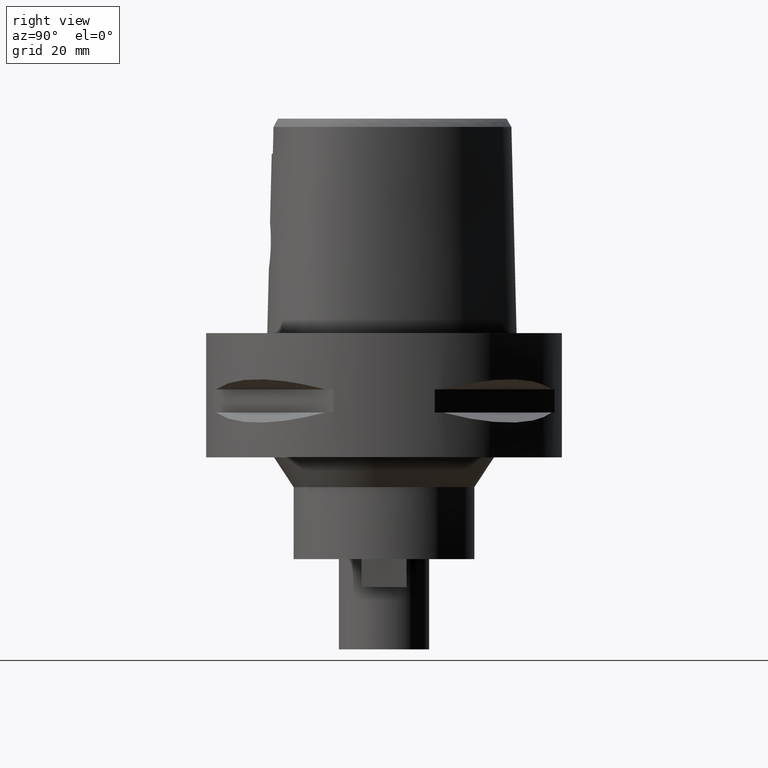
[diagram: clean part render]
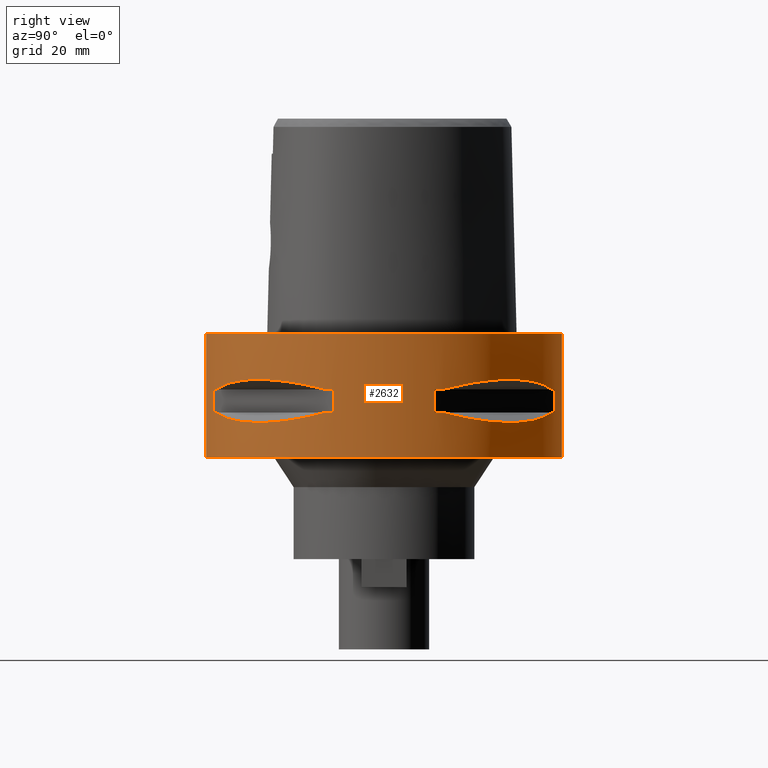
[diagram: same view with one face highlighted and labeled with its STEP entity id]
A machine part, right view. The second image highlights one B-rep face of the part: STEP entity #2632.
In plain terms, the highlighted cylindrical surface (partial cylindrical patch) has radius 31.5 mm, axis along (0, 0, -1).
Its self-contained STEP definition (entity closure, byte-faithful):
#311=CARTESIAN_POINT('',(0.E0,1.258936909523E-14,0.E0));
#312=DIRECTION('',(0.E0,0.E0,-1.E0));
#313=DIRECTION('',(0.E0,1.E0,0.E0));
#314=AXIS2_PLACEMENT_3D('',#311,#312,#313);
#409=DIRECTION('',(0.E0,0.E0,-1.E0));
#410=VECTOR('',#409,2.2E1);
#411=CARTESIAN_POINT('',(0.E0,-3.15E1,0.E0));
#412=LINE('',#411,#410);
#466=DIRECTION('',(0.E0,0.E0,-1.E0));
#467=VECTOR('',#466,2.2E1);
#468=CARTESIAN_POINT('',(0.E0,3.15E1,0.E0));
#469=LINE('',#468,#467);
#473=DIRECTION('',(0.E0,0.E0,-1.E0));
#474=VECTOR('',#473,4.1E0);
#475=CARTESIAN_POINT('',(8.981198972018E0,-3.019251670572E1,-9.95E0));
#476=LINE('',#475,#474);
#480=CARTESIAN_POINT('',(1.044775724750E1,-2.971690375018E1,-1.405E1));
#481=CARTESIAN_POINT('',(1.282388988809E1,-2.888151197365E1,-1.467900482380E1));
#482=CARTESIAN_POINT('',(1.711282138769E1,-2.674739463903E1,-1.555870402292E1));
#483=CARTESIAN_POINT('',(2.244574140438E1,-2.244574140438E1,-1.597971692370E1));
#484=CARTESIAN_POINT('',(2.674739463903E1,-1.711282138769E1,-1.555870402292E1));
#485=CARTESIAN_POINT('',(2.888151197365E1,-1.282388988809E1,-1.467900482380E1));
#486=CARTESIAN_POINT('',(2.971690375018E1,-1.044775724750E1,-1.405E1));
#491=DIRECTION('',(0.E0,0.E0,1.E0));
#492=VECTOR('',#491,4.1E0);
#493=CARTESIAN_POINT('',(3.019251670572E1,-8.981198972018E0,-1.405E1));
#494=LINE('',#493,#492);
#498=DIRECTION('',(0.E0,0.E0,-1.E0));
#499=VECTOR('',#498,4.1E0);
#500=CARTESIAN_POINT('',(3.019251670572E1,8.981198972018E0,-9.95E0));
#501=LINE('',#500,#499);
#505=CARTESIAN_POINT('',(2.971690375018E1,1.044775724750E1,-1.405E1));
#506=CARTESIAN_POINT('',(2.888151197365E1,1.282388988809E1,-1.467900482380E1));
#507=CARTESIAN_POINT('',(2.674739463903E1,1.711282138769E1,-1.555870402292E1));
#508=CARTESIAN_POINT('',(2.244574140438E1,2.244574140438E1,-1.597971692370E1));
#509=CARTESIAN_POINT('',(1.711282138769E1,2.674739463903E1,-1.555870402292E1));
#510=CARTESIAN_POINT('',(1.282388988809E1,2.888151197365E1,-1.467900482380E1));
#511=CARTESIAN_POINT('',(1.044775724750E1,2.971690375018E1,-1.405E1));
#516=DIRECTION('',(0.E0,0.E0,1.E0));
#517=VECTOR('',#516,4.1E0);
#518=CARTESIAN_POINT('',(8.981198972018E0,3.019251670572E1,-1.405E1));
#519=LINE('',#518,#517);
#523=CARTESIAN_POINT('',(0.E0,1.258936909523E-14,-2.2E1));
#524=DIRECTION('',(0.E0,0.E0,1.E0));
#525=DIRECTION('',(0.E0,-1.E0,0.E0));
#526=AXIS2_PLACEMENT_3D('',#523,#524,#525);
#1360=CARTESIAN_POINT('',(1.044775724750E1,-2.971690375018E1,
-9.949999999999E0));
#1361=CARTESIAN_POINT('',(1.282388988809E1,-2.888151197365E1,
-9.320995176198E0));
#1362=CARTESIAN_POINT('',(1.711282138769E1,-2.674739463903E1,
-8.441295977074E0));
#1363=CARTESIAN_POINT('',(2.244574140438E1,-2.244574140438E1,
-8.020283076294E0));
#1364=CARTESIAN_POINT('',(2.674739463903E1,-1.711282138769E1,
-8.441295977074E0));
#1365=CARTESIAN_POINT('',(2.888151197365E1,-1.282388988809E1,
-9.320995176198E0));
#1366=CARTESIAN_POINT('',(2.971690375018E1,-1.044775724750E1,
-9.949999999999E0));
#1371=CARTESIAN_POINT('',(0.E0,1.258936909523E-14,-9.95E0));
#1372=DIRECTION('',(0.E0,0.E0,1.E0));
#1373=DIRECTION('',(9.433937698469E-1,-3.316748332541E-1,0.E0));
#1374=AXIS2_PLACEMENT_3D('',#1371,#1372,#1373);
#1379=CARTESIAN_POINT('',(0.E0,1.258936909523E-14,-9.95E0));
#1380=DIRECTION('',(0.E0,0.E0,1.E0));
#1381=DIRECTION('',(2.851174276832E-1,-9.584925938323E-1,0.E0));
#1382=AXIS2_PLACEMENT_3D('',#1379,#1380,#1381);
#1401=CARTESIAN_POINT('',(0.E0,1.258936909523E-14,-1.405E1));
#1402=DIRECTION('',(0.E0,0.E0,-1.E0));
#1403=DIRECTION('',(9.584925938323E-1,-2.851174276832E-1,0.E0));
#1404=AXIS2_PLACEMENT_3D('',#1401,#1402,#1403);
#1409=CARTESIAN_POINT('',(0.E0,1.258936909523E-14,-1.405E1));
#1410=DIRECTION('',(0.E0,0.E0,-1.E0));
#1411=DIRECTION('',(3.316748332541E-1,-9.433937698469E-1,0.E0));
#1412=AXIS2_PLACEMENT_3D('',#1409,#1410,#1411);
#1431=CARTESIAN_POINT('',(2.971690375018E1,1.044775724750E1,-9.949999999999E0));
#1432=CARTESIAN_POINT('',(2.888151197365E1,1.282388988809E1,-9.320995176198E0));
#1433=CARTESIAN_POINT('',(2.674739463903E1,1.711282138769E1,-8.441295977074E0));
#1434=CARTESIAN_POINT('',(2.244574140438E1,2.244574140438E1,-8.020283076294E0));
#1435=CARTESIAN_POINT('',(1.711282138769E1,2.674739463903E1,-8.441295977074E0));
#1436=CARTESIAN_POINT('',(1.282388988809E1,2.888151197365E1,-9.320995176198E0));
#1437=CARTESIAN_POINT('',(1.044775724750E1,2.971690375018E1,-9.949999999999E0));
#1442=CARTESIAN_POINT('',(0.E0,1.258936909523E-14,-9.95E0));
#1443=DIRECTION('',(0.E0,0.E0,1.E0));
#1444=DIRECTION('',(3.316748332541E-1,9.433937698469E-1,0.E0));
#1445=AXIS2_PLACEMENT_3D('',#1442,#1443,#1444);
#1450=CARTESIAN_POINT('',(0.E0,1.258936909523E-14,-9.95E0));
#1451=DIRECTION('',(0.E0,0.E0,1.E0));
#1452=DIRECTION('',(9.584925938323E-1,2.851174276832E-1,0.E0));
#1453=AXIS2_PLACEMENT_3D('',#1450,#1451,#1452);
#1472=CARTESIAN_POINT('',(0.E0,1.258936909523E-14,-1.405E1));
#1473=DIRECTION('',(0.E0,0.E0,-1.E0));
#1474=DIRECTION('',(2.851174276832E-1,9.584925938323E-1,0.E0));
#1475=AXIS2_PLACEMENT_3D('',#1472,#1473,#1474);
#1480=CARTESIAN_POINT('',(0.E0,1.258936909523E-14,-1.405E1));
#1481=DIRECTION('',(0.E0,0.E0,-1.E0));
#1482=DIRECTION('',(9.433937698469E-1,3.316748332541E-1,0.E0));
#1483=AXIS2_PLACEMENT_3D('',#1480,#1481,#1482);
#1670=CARTESIAN_POINT('',(0.E0,-3.15E1,0.E0));
#1671=CARTESIAN_POINT('',(0.E0,3.15E1,0.E0));
#1672=VERTEX_POINT('',#1670);
#1673=VERTEX_POINT('',#1671);
#1674=CARTESIAN_POINT('',(0.E0,3.15E1,-2.2E1));
#1675=VERTEX_POINT('',#1674);
#1676=CARTESIAN_POINT('',(0.E0,-3.15E1,-2.2E1));
#1677=VERTEX_POINT('',#1676);
#1704=VERTEX_POINT('',#1360);
#1705=VERTEX_POINT('',#1366);
#1706=CARTESIAN_POINT('',(8.981198972020E0,-3.019251670572E1,-9.95E0));
#1707=VERTEX_POINT('',#1706);
#1708=CARTESIAN_POINT('',(8.981198972018E0,-3.019251670572E1,-1.405E1));
#1709=VERTEX_POINT('',#1708);
#1710=CARTESIAN_POINT('',(1.044775724750E1,-2.971690375018E1,-1.405E1));
#1711=VERTEX_POINT('',#1710);
#1712=VERTEX_POINT('',#486);
#1713=CARTESIAN_POINT('',(3.019251670572E1,-8.981198972020E0,-1.405E1));
#1714=VERTEX_POINT('',#1713);
#1715=CARTESIAN_POINT('',(3.019251670572E1,-8.981198972018E0,-9.95E0));
#1716=VERTEX_POINT('',#1715);
#1717=VERTEX_POINT('',#1431);
#1718=VERTEX_POINT('',#1437);
#1719=CARTESIAN_POINT('',(3.019251670572E1,8.981198972020E0,-9.95E0));
#1720=VERTEX_POINT('',#1719);
#1721=CARTESIAN_POINT('',(3.019251670572E1,8.981198972018E0,-1.405E1));
#1722=VERTEX_POINT('',#1721);
#1723=CARTESIAN_POINT('',(2.971690375018E1,1.044775724750E1,-1.405E1));
#1724=VERTEX_POINT('',#1723);
#1725=VERTEX_POINT('',#511);
#1726=CARTESIAN_POINT('',(8.981198972020E0,3.019251670572E1,-1.405E1));
#1727=VERTEX_POINT('',#1726);
#1728=CARTESIAN_POINT('',(8.981198972018E0,3.019251670572E1,-9.95E0));
#1729=VERTEX_POINT('',#1728);
#2584=CARTESIAN_POINT('',(0.E0,1.258936909523E-14,2.8E0));
#2585=DIRECTION('',(0.E0,0.E0,-1.E0));
#2586=DIRECTION('',(0.E0,-1.E0,0.E0));
#2587=AXIS2_PLACEMENT_3D('',#2584,#2585,#2586);
#2588=CYLINDRICAL_SURFACE('',#2587,3.15E1);
#2589=ORIENTED_EDGE('',*,*,#2538,.T.);
#2591=ORIENTED_EDGE('',*,*,#2590,.F.);
#2592=ORIENTED_EDGE('',*,*,#2541,.F.);
#2593=ORIENTED_EDGE('',*,*,#2523,.F.);
#2594=EDGE_LOOP('',(#2589,#2591,#2592,#2593));
#2595=FACE_OUTER_BOUND('',#2594,.F.);
#2597=ORIENTED_EDGE('',*,*,#2596,.F.);
#2599=ORIENTED_EDGE('',*,*,#2598,.F.);
#2601=ORIENTED_EDGE('',*,*,#2600,.T.);
#2603=ORIENTED_EDGE('',*,*,#2602,.F.);
#2605=ORIENTED_EDGE('',*,*,#2604,.T.);
#2607=ORIENTED_EDGE('',*,*,#2606,.F.);
#2609=ORIENTED_EDGE('',*,*,#2608,.T.);
#2611=ORIENTED_EDGE('',*,*,#2610,.F.);
#2612=EDGE_LOOP('',(#2597,#2599,#2601,#2603,#2605,#2607,#2609,#2611));
#2613=FACE_BOUND('',#2612,.F.);
#2615=ORIENTED_EDGE('',*,*,#2614,.F.);
#2617=ORIENTED_EDGE('',*,*,#2616,.F.);
#2619=ORIENTED_EDGE('',*,*,#2618,.T.);
#2621=ORIENTED_EDGE('',*,*,#2620,.F.);
#2623=ORIENTED_EDGE('',*,*,#2622,.T.);
#2625=ORIENTED_EDGE('',*,*,#2624,.F.);
#2627=ORIENTED_EDGE('',*,*,#2626,.T.);
#2629=ORIENTED_EDGE('',*,*,#2628,.F.);
#2630=EDGE_LOOP('',(#2615,#2617,#2619,#2621,#2623,#2625,#2627,#2629));
#2631=FACE_BOUND('',#2630,.F.);
#315=CIRCLE('',#314,3.15E1);
#487=B_SPLINE_CURVE_WITH_KNOTS('',3,(#480,#481,#482,#483,#484,#485,#486),
.UNSPECIFIED.,.F.,.F.,(4,1,1,1,4),(0.E0,2.5E-1,5.E-1,7.5E-1,1.E0),
.UNSPECIFIED.);
#512=B_SPLINE_CURVE_WITH_KNOTS('',3,(#505,#506,#507,#508,#509,#510,#511),
.UNSPECIFIED.,.F.,.F.,(4,1,1,1,4),(0.E0,2.5E-1,5.E-1,7.5E-1,1.E0),
.UNSPECIFIED.);
#527=CIRCLE('',#526,3.15E1);
#1367=B_SPLINE_CURVE_WITH_KNOTS('',3,(#1360,#1361,#1362,#1363,#1364,#1365,
#1366),.UNSPECIFIED.,.F.,.F.,(4,1,1,1,4),(0.E0,2.5E-1,5.E-1,7.5E-1,1.E0),
.UNSPECIFIED.);
#1375=CIRCLE('',#1374,3.15E1);
#1383=CIRCLE('',#1382,3.15E1);
#1405=CIRCLE('',#1404,3.15E1);
#1413=CIRCLE('',#1412,3.15E1);
#1438=B_SPLINE_CURVE_WITH_KNOTS('',3,(#1431,#1432,#1433,#1434,#1435,#1436,
#1437),.UNSPECIFIED.,.F.,.F.,(4,1,1,1,4),(0.E0,2.5E-1,5.E-1,7.5E-1,1.E0),
.UNSPECIFIED.);
#1446=CIRCLE('',#1445,3.15E1);
#1454=CIRCLE('',#1453,3.15E1);
#1476=CIRCLE('',#1475,3.15E1);
#1484=CIRCLE('',#1483,3.15E1);
#2523=EDGE_CURVE('',#1673,#1672,#315,.T.);
#2538=EDGE_CURVE('',#1673,#1675,#469,.T.);
#2541=EDGE_CURVE('',#1672,#1677,#412,.T.);
#2590=EDGE_CURVE('',#1677,#1675,#527,.T.);
#2596=EDGE_CURVE('',#1704,#1705,#1367,.T.);
#2598=EDGE_CURVE('',#1707,#1704,#1383,.T.);
#2600=EDGE_CURVE('',#1707,#1709,#476,.T.);
#2602=EDGE_CURVE('',#1711,#1709,#1413,.T.);
#2604=EDGE_CURVE('',#1711,#1712,#487,.T.);
#2606=EDGE_CURVE('',#1714,#1712,#1405,.T.);
#2608=EDGE_CURVE('',#1714,#1716,#494,.T.);
#2610=EDGE_CURVE('',#1705,#1716,#1375,.T.);
#2614=EDGE_CURVE('',#1717,#1718,#1438,.T.);
#2616=EDGE_CURVE('',#1720,#1717,#1454,.T.);
#2618=EDGE_CURVE('',#1720,#1722,#501,.T.);
#2620=EDGE_CURVE('',#1724,#1722,#1484,.T.);
#2622=EDGE_CURVE('',#1724,#1725,#512,.T.);
#2624=EDGE_CURVE('',#1727,#1725,#1476,.T.);
#2626=EDGE_CURVE('',#1727,#1729,#519,.T.);
#2628=EDGE_CURVE('',#1718,#1729,#1446,.T.);
#2632=ADVANCED_FACE('',(#2595,#2613,#2631),#2588,.T.);